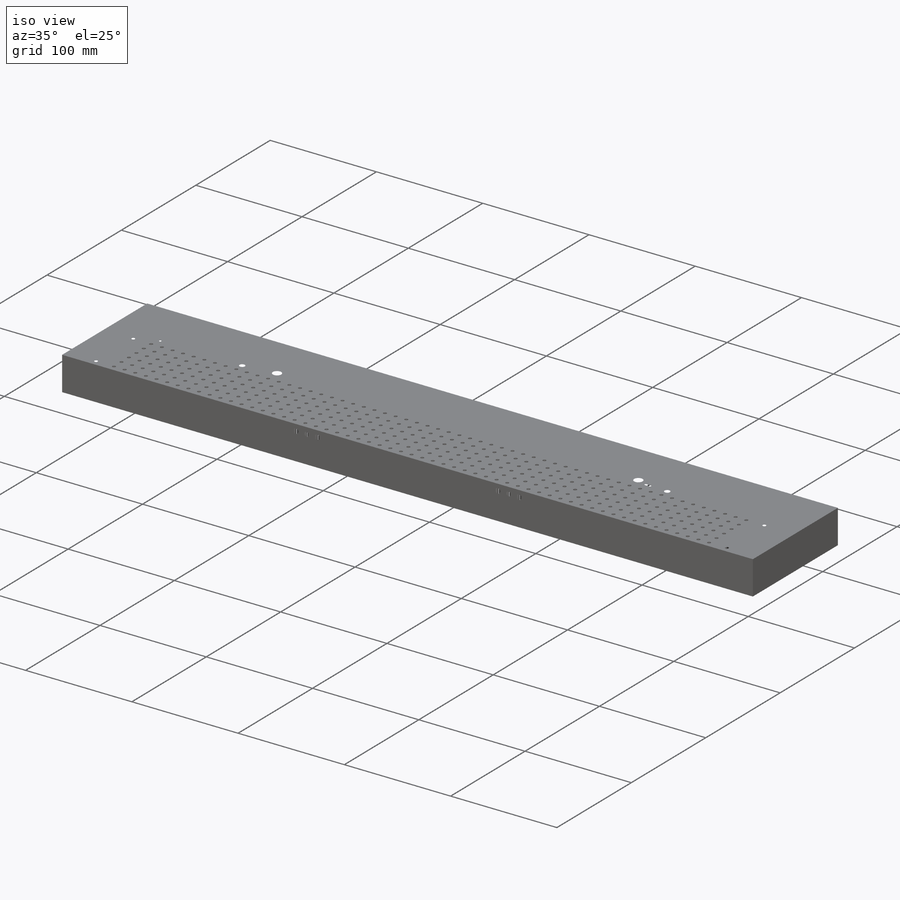
[diagram: iso view]
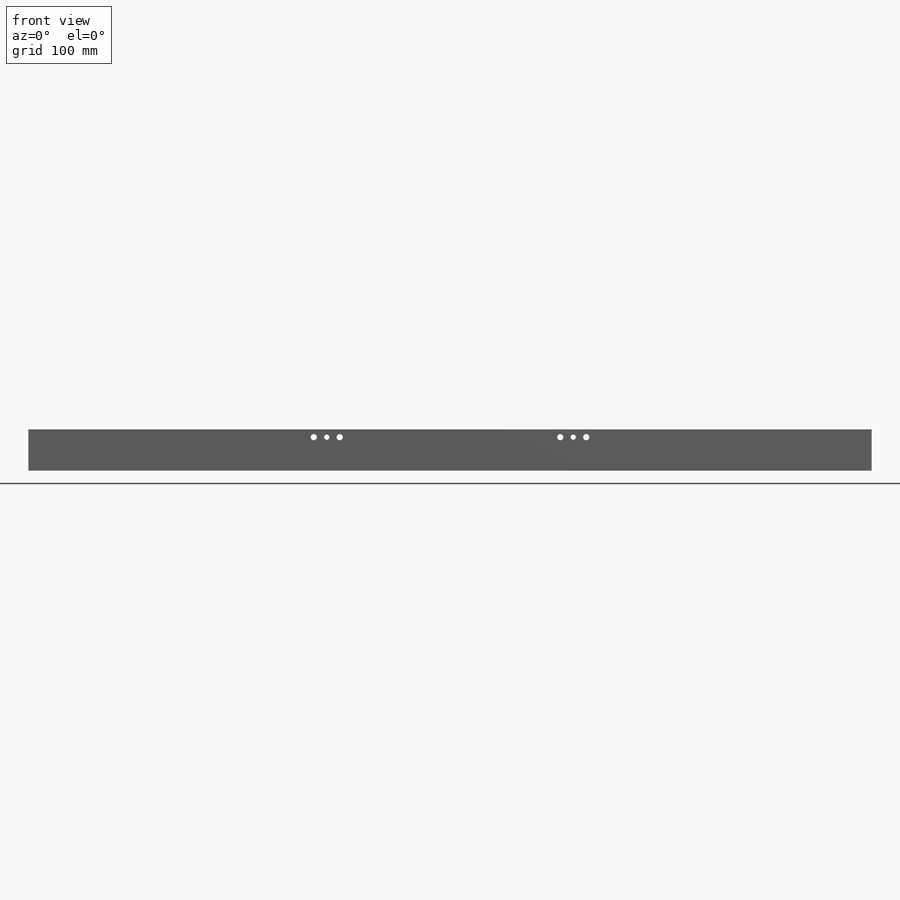
[diagram: front view]
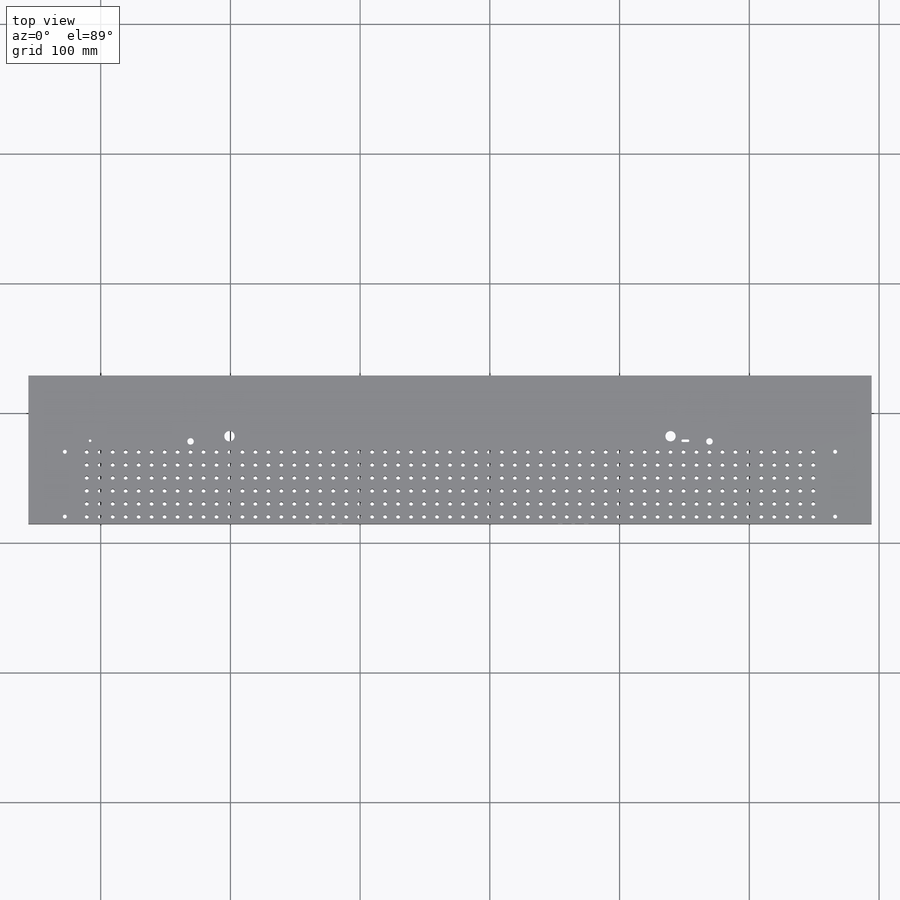
[diagram: top view]
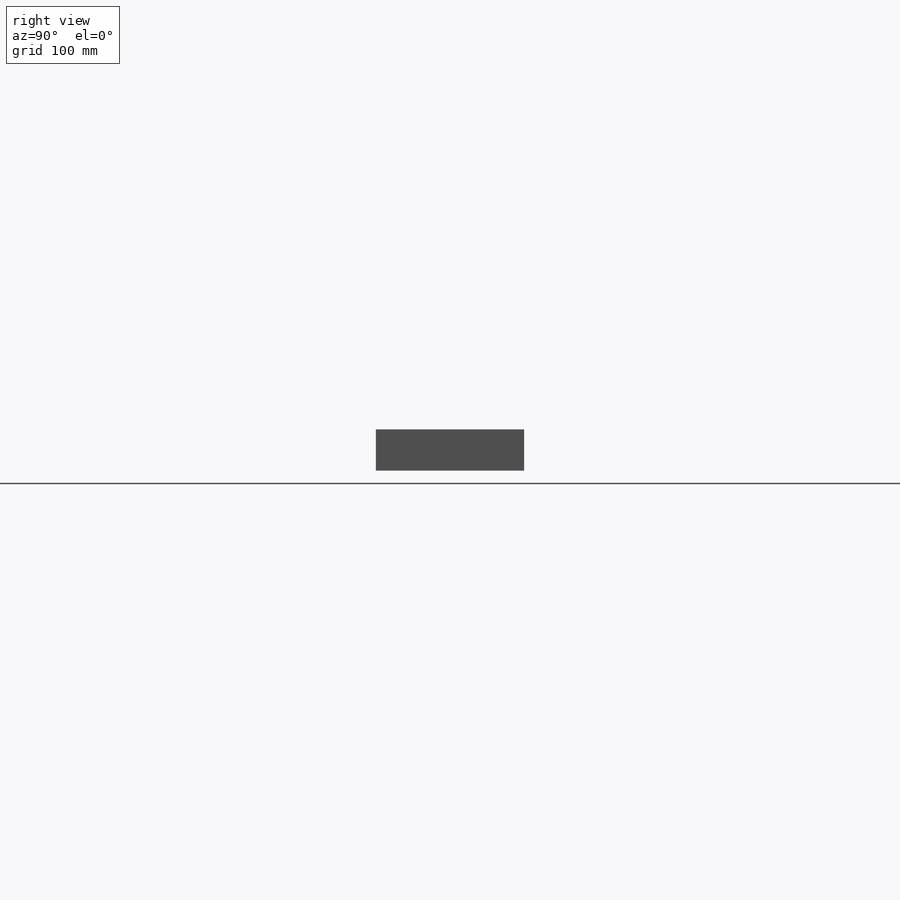
[diagram: right view]
SOLIDWORKS PART (.sldprt)
format: sldprt  version: not decoded by parser v0  size: 1,164,288 bytes
history: native  units: mm
features: sketch x25, hole x9, cut_extrude x3, extrude x2, pattern_linear x2, thread x2, material x1, fillet x1 (+11 scaffold rows collapsed)
feature tree (56):
  scaffold x11  (default folders/planes/origin — collapsed)
  material  "Material <not specified>"
  sketch  "Sketch1"  dims[c1.D1=~81.220909mm c1.D2=~154.046892mm c2.D1=650.0mm c2.D2=114.3mm]
  extrude  "Boss-Extrude1"  Depth=31.75mm
  hole  "Hole2"  Diameter=7.9629mm Depth=15.875mm
  sketch  "Sketch5"  dims[D1=155.0mm D2=340.0mm D3=67.5mm D4=67.5mm]
  sketch  "Sketch4"  dims[Diameter=7.9629mm Depth=15.875mm]
  hole  "Hole3"  Diameter=7.9629mm Depth=15.875mm
  sketch  "Sketch10"  dims[D1=325.0mm]
  sketch  "Sketch9"  dims[Diameter=7.9629mm Depth=15.875mm]
  hole  "Hole4"  Diameter=5mm Depth=15.875mm
  sketch  "Sketch12"  dims[D1=200.0mm D2=200.0mm D3=63.5mm D4=63.5mm]
  sketch  "Sketch11"  dims[Diameter=5.0mm Depth=15.875mm]
  hole  "Hole6"  Diameter=3mm Depth=5mm
  sketch  "Sketch16"  dims[c1.D1=7.9629mm c1.D2=7.9629mm c1.D3=7.9629mm c2.D1=296.9mm c2.D2=297.1553mm c2.D3=296.9mm c2.D4=297.1553mm c2.D5=5.5mm c2.D6=5.5mm c2.D7=50.0mm c2.D8=50.0mm c3.D1=593.8mm c3.D2=28.1mm c3.D3=28.1mm c3.D4=5.5mm c4.D2=296.9mm c4.D3=296.9mm]
  sketch  "Sketch15"  dims[Diameter=3.0mm Depth=5.0mm]
  hole  "Hole7"  Diameter=3mm Depth=30mm
  sketch  "Sketch18"  dims[c1.D2=7.9629mm c1.D1=5.5mm c2.D2=10.0mm]
  sketch  "Sketch17"  dims[Diameter=3.0mm Depth=30.0mm]
  sketch  "Sketch19"  dims[D1=10.0mm]
  pattern_linear  "LPattern2"  Count1=28 Count2=6 Spacing1=10mm Spacing2=10mm
  hole  "Hole12"  Diameter=3mm Depth=30mm
  sketch  "Sketch34"
  sketch  "Sketch33"  dims[Diameter=3.0mm Depth=30.0mm]
  pattern_linear  "LPattern3"  Count1=29 Count2=6 Spacing1=10mm Spacing2=10mm
  sketch  "Sketch35"  dims[D1=325.0mm]
  hole  "Hole13"  Diameter=4.7625mm Depth=12mm
  sketch  "Sketch37"  dims[D1=105.0mm D2=85.0mm D3=105.0mm D4=85.0mm D5=6.0mm D6=6.0mm D7=6.0mm D8=6.0mm]
  sketch  "Sketch36"  dims[Diameter=4.7625mm Depth=12.0mm]
  hole  "#10-32 Tapped Hole1"  Diameter=4.0386mm Depth=15.24mm
  sketch  "Sketch40"  dims[D1=95.0mm D2=95.0mm D3=6.0mm D4=6.0mm]
  sketch  "Sketch38"  dims[hole-wizard template sketch: 47 standard entries collapsed; hole parameters kept: c15.Tap Drill Depth=15.24mm c15.D3=~14.816244mm c15.Drill Angle=118.0deg]
  thread  "Hole Thread1"  Diameter=12.7mm  [1 undecoded]
  thread  "Hole Thread2"  Diameter=12.7mm  [1 undecoded]
  sketch  "Sketch41"  dims[c1.D1=~84.69569mm c1.D2=~599.384885mm c2.D1=4.5mm c2.D2=55.0mm c2.D3=40.0mm c2.D4=40.0mm]
  cut_extrude  "Cut-Extrude1"  Depth=8mm
  sketch  "Sketch44"  dims[c1.D1=~60.471499mm c1.D2=~579.720103mm c2.D1=3.0mm c2.D2=3.0mm c2.D3=3.0mm c2.D4=3.0mm]
  cut_extrude  "Cut-Extrude2"  Depth=3.2mm
  fillet  "Fillet120"  Radius=3mm
  hole  "1/4 NPT Tapped Hole1"  Diameter=11.1252mm Depth=47.07mm
  sketch  "Sketch50"  dims[D1=10.5mm D2=30.5mm]
  sketch  "Sketch49"  dims[hole-wizard template sketch: 39 standard entries collapsed; hole parameters kept: c10.Tap Drill Dia.=11.1252mm c10.Tap Drill Depth=47.07mm c10.Thread Dia.=~13.715975mm c10.D4=~21.335028mm c10.Thread Angle=3.43deg c10.Thread Depth=10.02mm c10.C'Sink Dia.=~14.985975mm c10.D7=~2.053058mm c10.C'Sink Angle=60.0deg c10.D8=~21.878095mm c10.Drill Angle=118.0deg]
  sketch  "Sketch51"
  extrude  "fill hole 3"  [1 undecoded]
  sketch  "Sketch52"  dims[c1.D1=2.0mm c1.D2=2.0mm c1.D3=~1.254556mm c2.D1=64.0mm c2.D2=277.4mm c2.D3=181.4mm]
  cut_extrude  "Cut-Extrude3"  Depth=5mm
decode coverage: 41 of 44 modeling features carry decoded parameters
note: ~ marks probable driven/reference dimensions
note: 3 parameter values undecoded
summary: Diameter pulled from absorbed wizard sketch
note: suppression state not decoded; provenance and decode notes live in map.json
